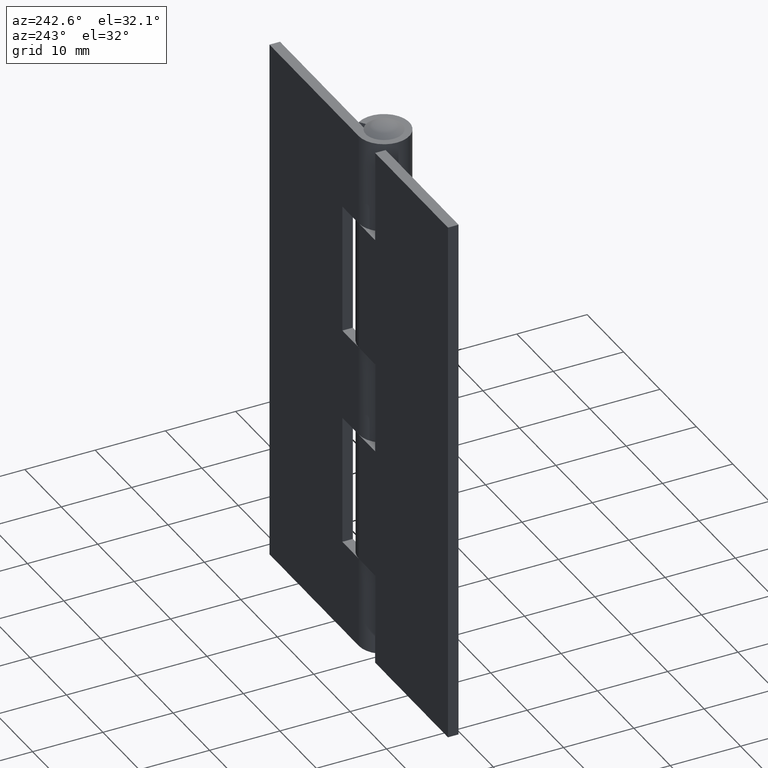
[diagram: clean part render]
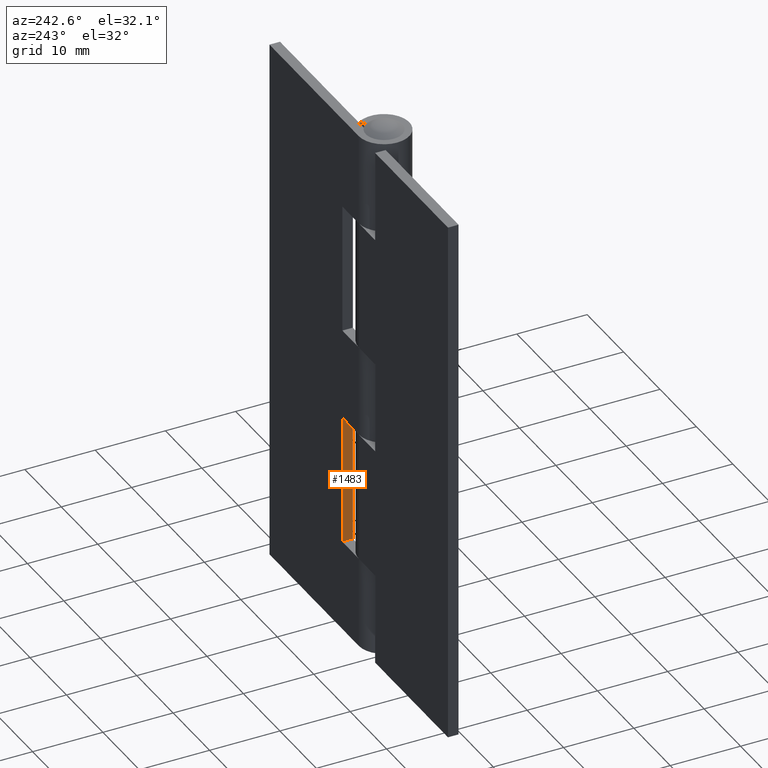
[diagram: same view with one face highlighted and labeled with its STEP entity id]
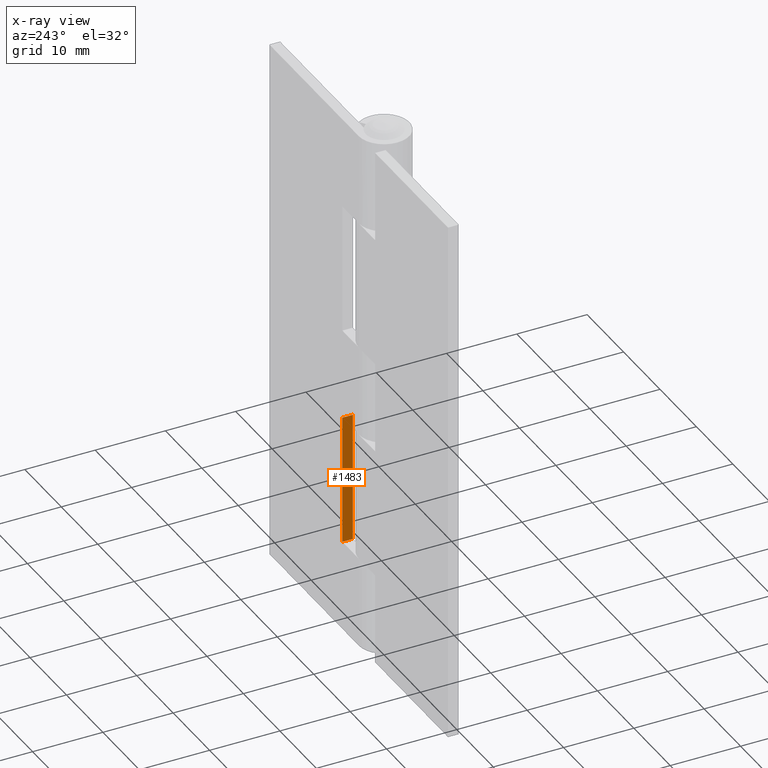
[diagram: x-ray of the same camera — body ghosted, the highlighted face saturated]
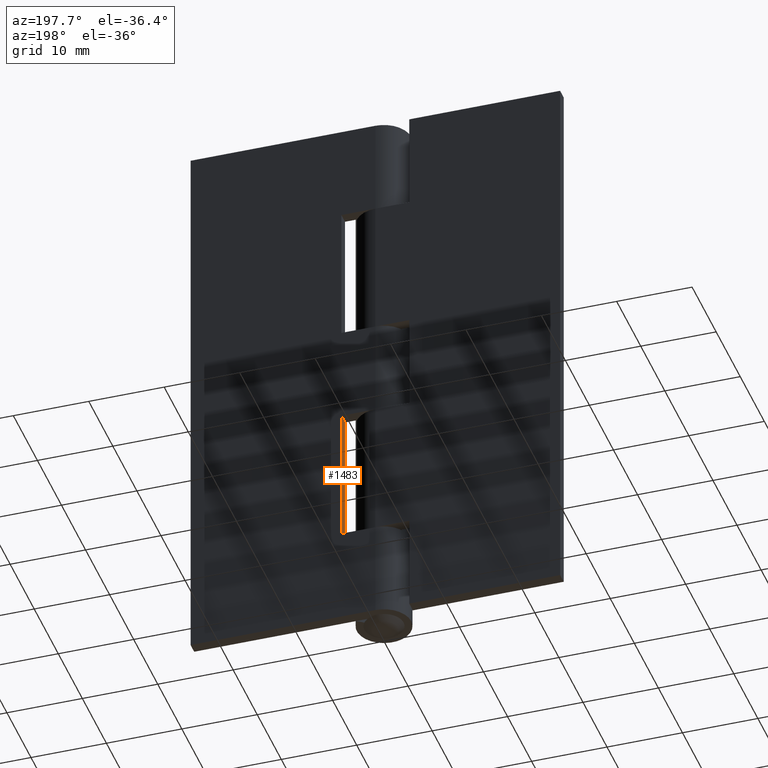
[diagram: same view with one face highlighted and labeled with its STEP entity id]
A machine part, auxiliary view. The second image highlights one B-rep face of the part: STEP entity #1483.
The next image is the same camera in x-ray: the body ghosted, the highlighted face saturated — about 0% of this face is hidden behind the body in this view.
A second angle (auxiliary view) of the same face is appended — the face is thin or edge-on in the first view.
In plain terms, the highlighted face is a freeform B-spline surface patch.
Its self-contained STEP definition (entity closure, byte-faithful):
#1125=CARTESIAN_POINT('',(4.500000000000000,2.099998000000045,31.500000000000000));
#1126=VERTEX_POINT('',#1125);
#1132=CARTESIAN_POINT('',(4.500000000000000,2.099998000000045,13.0));
#1133=VERTEX_POINT('',#1132);
#1134=CARTESIAN_POINT('',(4.500000000000000,2.099998000000045,31.500000000000000));
#1135=CARTESIAN_POINT('',(4.500000000000000,2.099998000000045,13.0));
#1136=QUASI_UNIFORM_CURVE('',1,(#1134,#1135),.UNSPECIFIED.,.F.,.U.);
#1137=EDGE_CURVE('',#1126,#1133,#1136,.T.);
#1406=CARTESIAN_POINT('',(4.500000000000000,3.599998000000105,31.500000000000000));
#1407=VERTEX_POINT('',#1406);
#1413=CARTESIAN_POINT('',(4.500000000000000,2.099998000000045,31.500000000000000));
#1414=CARTESIAN_POINT('',(4.500000000000000,3.599998000000105,31.500000000000000));
#1415=QUASI_UNIFORM_CURVE('',1,(#1413,#1414),.UNSPECIFIED.,.F.,.U.);
#1416=EDGE_CURVE('',#1126,#1407,#1415,.T.);
#1462=CARTESIAN_POINT('',(4.500000000000000,2.025073002907333,12.075925035856590));
#1463=CARTESIAN_POINT('',(4.500000000000000,2.025073002907333,32.424075460352078));
#1464=CARTESIAN_POINT('',(4.500000000000000,3.674923037325952,12.075925035856590));
#1465=CARTESIAN_POINT('',(4.500000000000000,3.674923037325952,32.424075460352078));
#1466=B_SPLINE_SURFACE_WITH_KNOTS('',1,1,((#1462,#1464),(#1463,#1465)),.UNSPECIFIED.,.F.,.F.,.U.,(2,2),(2,2),(0.0,20.348150424495490),(0.041708334948495,0.958291687403247),.UNSPECIFIED.);
#1467=ORIENTED_EDGE('',*,*,#1416,.T.);
#1468=CARTESIAN_POINT('',(4.500000000000000,3.599998000000105,13.0));
#1469=VERTEX_POINT('',#1468);
#1470=CARTESIAN_POINT('',(4.500000000000000,3.599998000000105,13.0));
#1471=CARTESIAN_POINT('',(4.500000000000000,3.599998000000105,31.500000000000000));
#1472=QUASI_UNIFORM_CURVE('',1,(#1470,#1471),.UNSPECIFIED.,.F.,.U.);
#1473=EDGE_CURVE('',#1469,#1407,#1472,.T.);
#1474=ORIENTED_EDGE('',*,*,#1473,.F.);
#1475=CARTESIAN_POINT('',(4.500000000000000,2.099998000000045,13.0));
#1476=CARTESIAN_POINT('',(4.500000000000000,3.599998000000105,13.0));
#1477=QUASI_UNIFORM_CURVE('',1,(#1475,#1476),.UNSPECIFIED.,.F.,.U.);
#1478=EDGE_CURVE('',#1133,#1469,#1477,.T.);
#1479=ORIENTED_EDGE('',*,*,#1478,.F.);
#1480=ORIENTED_EDGE('',*,*,#1137,.F.);
#1481=EDGE_LOOP('',(#1467,#1474,#1479,#1480));
#1482=FACE_OUTER_BOUND('',#1481,.T.);
#1483=ADVANCED_FACE('',(#1482),#1466,.T.);